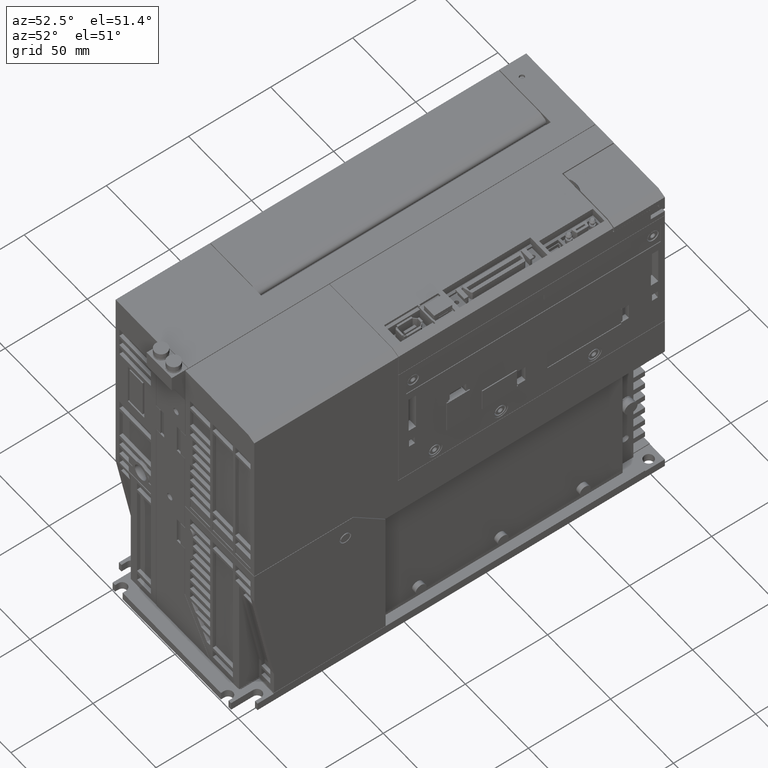
[diagram: clean part render]
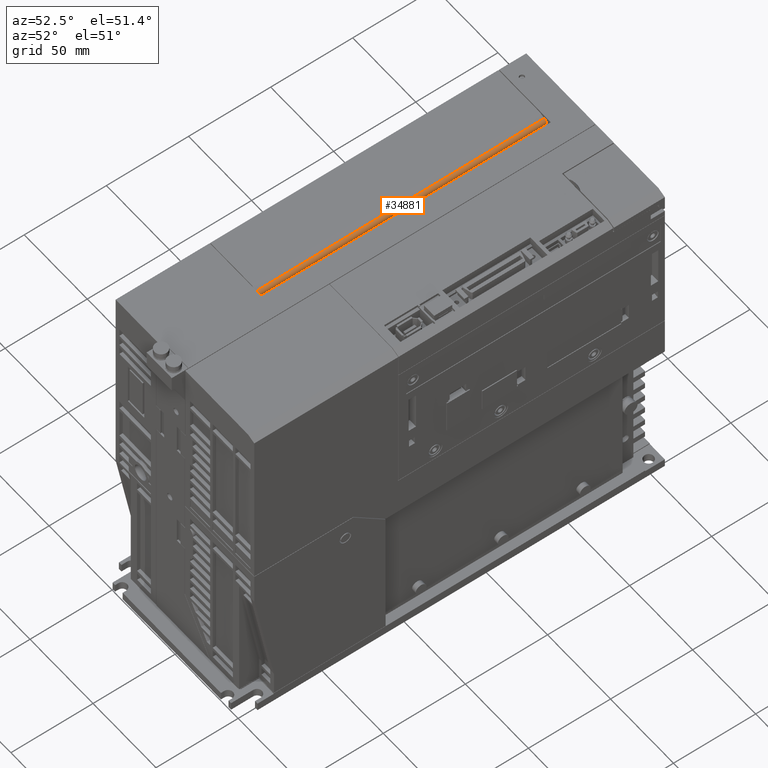
[diagram: same view with one face highlighted and labeled with its STEP entity id]
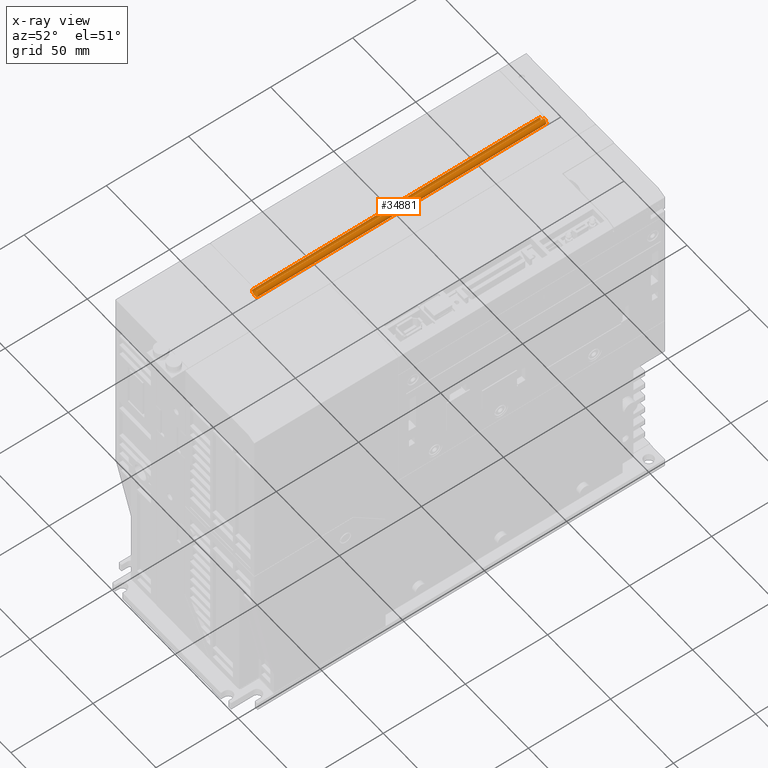
[diagram: x-ray of the same camera — body ghosted, the highlighted face saturated]
A machine part, auxiliary view. The second image highlights one B-rep face of the part: STEP entity #34881.
The next image is the same camera in x-ray: the body ghosted, the highlighted face saturated — about 0% of this face is hidden behind the body in this view.
In plain terms, the highlighted cylindrical surface (edge-blend (fillet) strip) has radius 2.4 mm, axis along (0, 1, 0).
Its self-contained STEP definition (entity closure, byte-faithful):
#249=CYLINDRICAL_SURFACE('',#37311,2.4);
#724=CIRCLE('',#37312,2.4);
#725=CIRCLE('',#37313,2.4);
#10150=ORIENTED_EDGE('',*,*,#14895,.F.);
#10151=ORIENTED_EDGE('',*,*,#14896,.T.);
#10152=ORIENTED_EDGE('',*,*,#14897,.T.);
#10153=ORIENTED_EDGE('',*,*,#14898,.F.);
#14895=EDGE_CURVE('',#18109,#18110,#724,.T.);
#14896=EDGE_CURVE('',#18109,#18111,#22343,.T.);
#14897=EDGE_CURVE('',#18111,#18112,#725,.T.);
#14898=EDGE_CURVE('',#18110,#18112,#22344,.T.);
#18109=VERTEX_POINT('',#56198);
#18110=VERTEX_POINT('',#56199);
#18111=VERTEX_POINT('',#56201);
#18112=VERTEX_POINT('',#56203);
#22343=LINE('',#56200,#26578);
#22344=LINE('',#56204,#26579);
#26578=VECTOR('',#46339,1000.);
#26579=VECTOR('',#46342,1000.);
#28919=EDGE_LOOP('',(#10150,#10151,#10152,#10153));
#31262=FACE_BOUND('',#28919,.T.);
#34881=ADVANCED_FACE('',(#31262),#249,.T.);
#37311=AXIS2_PLACEMENT_3D('',#56196,#46335,#46336);
#37312=AXIS2_PLACEMENT_3D('',#56197,#46337,#46338);
#37313=AXIS2_PLACEMENT_3D('',#56202,#46340,#46341);
#46335=DIRECTION('',(0.,1.,0.));
#46336=DIRECTION('',(0.,0.,-1.));
#46337=DIRECTION('',(0.,1.,0.));
#46338=DIRECTION('',(0.,0.,1.));
#46339=DIRECTION('',(0.,-1.,0.));
#46340=DIRECTION('',(0.,1.,0.));
#46341=DIRECTION('',(0.,0.,1.));
#46342=DIRECTION('',(0.,-1.,0.));
#56196=CARTESIAN_POINT('',(0.,87.75,0.));
#56197=CARTESIAN_POINT('',(0.,87.75000000001,0.));
#56198=CARTESIAN_POINT('',(0.820848343981578,87.75,2.2552622898862));
#56199=CARTESIAN_POINT('',(-2.4,87.75,2.77555756156289E-14));
#56200=CARTESIAN_POINT('',(0.820848343991578,87.75000000001,2.2552622898962));
#56201=CARTESIAN_POINT('',(0.820848343981578,-87.75,2.2552622898862));
#56202=CARTESIAN_POINT('',(0.,-87.75000000001,0.));
#56203=CARTESIAN_POINT('',(-2.4,-87.75,2.77555756156289E-14));
#56204=CARTESIAN_POINT('',(-2.40000000001,87.75000000001,1.00277555756156E-11));